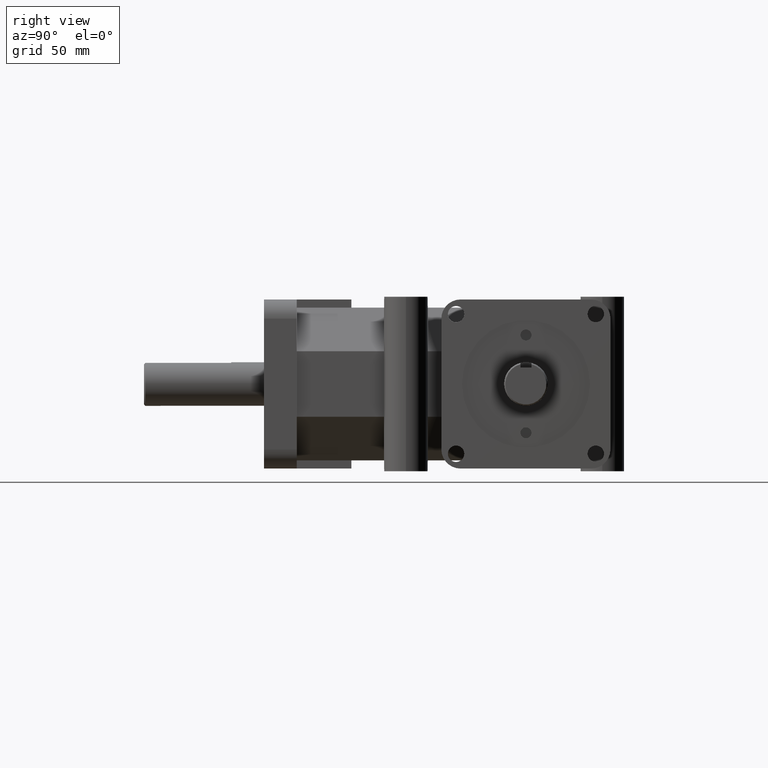
[diagram: clean part render]
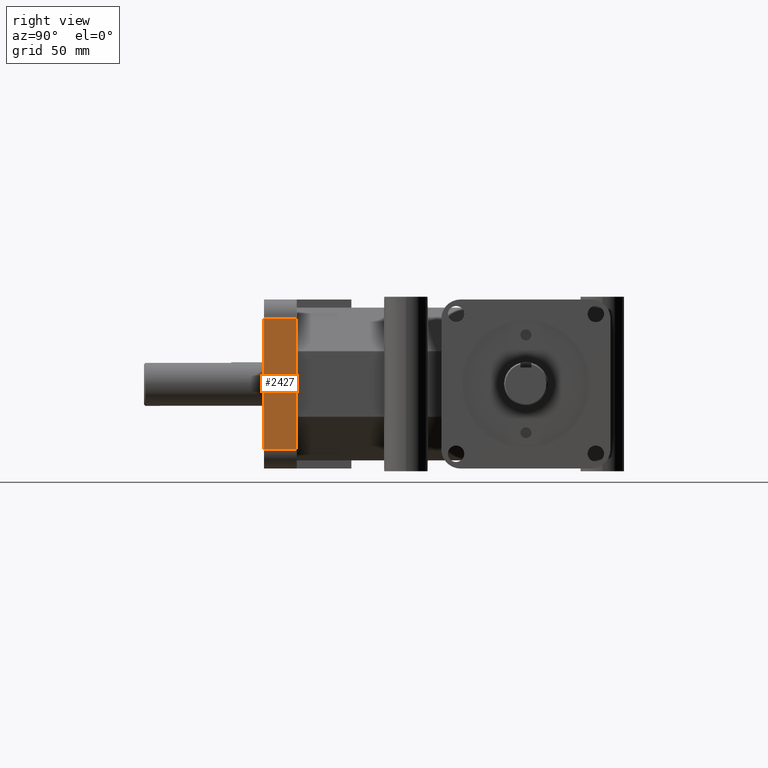
[diagram: same view with one face highlighted and labeled with its STEP entity id]
A machine part, right view. The second image highlights one B-rep face of the part: STEP entity #2427.
In plain terms, the highlighted planar face has unit normal (1, 0, 0).
Its self-contained STEP definition (entity closure, byte-faithful):
#285=VERTEX_POINT('',#3510);
#286=VERTEX_POINT('',#3512);
#289=VERTEX_POINT('',#3519);
#290=VERTEX_POINT('',#3521);
#481=VECTOR('',#2880,1.);
#483=VECTOR('',#2888,1.);
#507=VECTOR('',#2954,1.);
#608=VECTOR('',#3239,1.);
#682=LINE('',#3511,#481);
#684=LINE('',#3520,#483);
#708=LINE('',#3593,#507);
#809=LINE('',#3926,#608);
#937=EDGE_CURVE('',#285,#286,#682,.T.);
#941=EDGE_CURVE('',#289,#290,#684,.T.);
#978=EDGE_CURVE('',#285,#290,#708,.T.);
#1142=EDGE_CURVE('',#286,#289,#809,.T.);
#1770=ORIENTED_EDGE('',*,*,#937,.F.);
#1771=ORIENTED_EDGE('',*,*,#978,.T.);
#1772=ORIENTED_EDGE('',*,*,#941,.F.);
#1773=ORIENTED_EDGE('',*,*,#1142,.F.);
#2033=EDGE_LOOP('',(#1770,#1771,#1772,#1773));
#2268=FACE_BOUND('',#2033,.T.);
#2427=ADVANCED_FACE('',(#2268),#4011,.T.);
#2659=AXIS2_PLACEMENT_3D('',#3925,#3238,$);
#2880=DIRECTION('',(0.,1.,0.));
#2888=DIRECTION('',(0.,-1.,0.));
#2954=DIRECTION('',(0.,0.,-1.));
#3238=DIRECTION('',(1.,0.,0.));
#3239=DIRECTION('',(0.,0.,-1.));
#3510=CARTESIAN_POINT('',(1.9375,0.,1.4975));
#3511=CARTESIAN_POINT('',(1.9375,0.373670212765957,1.4975));
#3512=CARTESIAN_POINT('',(1.9375,0.75,1.4975));
#3519=CARTESIAN_POINT('',(1.9375,0.75,-1.4975));
#3520=CARTESIAN_POINT('',(1.9375,0.373670212765957,-1.4975));
#3521=CARTESIAN_POINT('',(1.9375,0.,-1.4975));
#3593=CARTESIAN_POINT('',(1.9375,0.,0.));
#3925=CARTESIAN_POINT('',(1.9375,0.,0.));
#3926=CARTESIAN_POINT('',(1.9375,0.75,0.));
#4011=PLANE('',#2659);